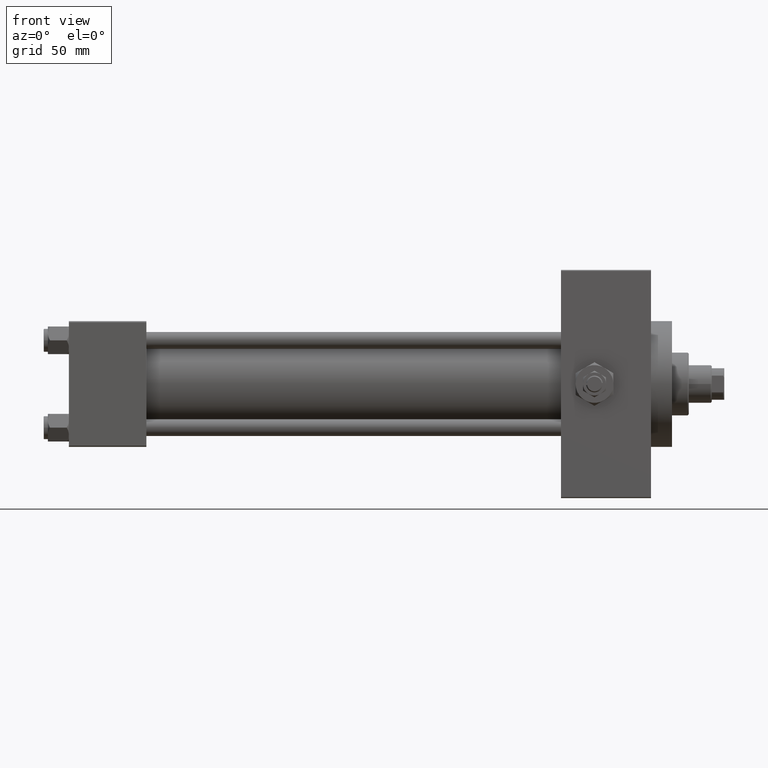
[diagram: clean part render]
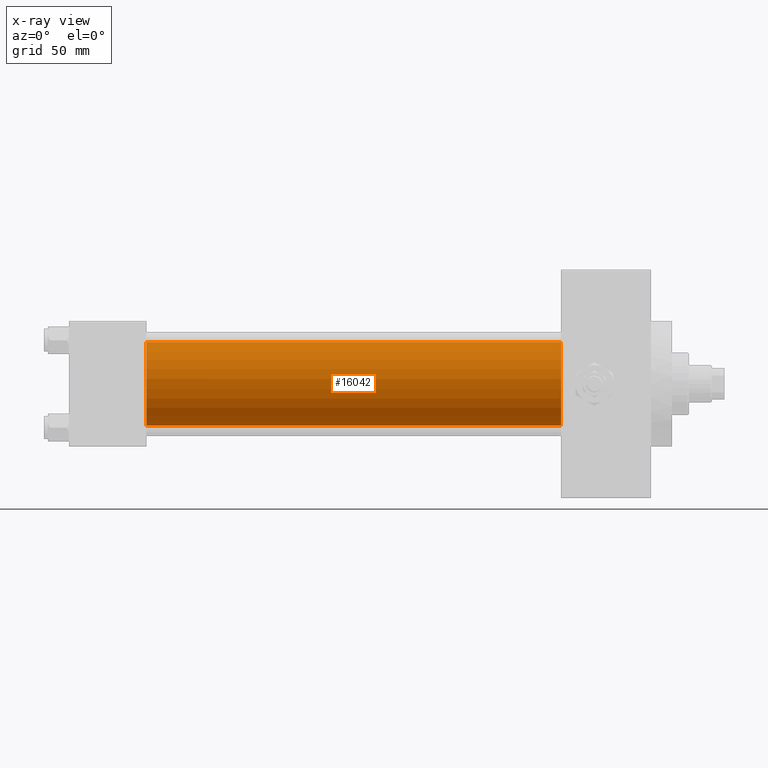
[diagram: x-ray — body ghosted, one internal face saturated and labeled with its STEP entity id]
A machine part, front view, then the same camera in x-ray: the body is ghosted and one INTERNAL B-rep face — a face not visible from any outside direction — is saturated and labeled: STEP entity #16042.
In plain terms, the highlighted cylindrical surface (partial cylindrical patch) has radius 20 mm, axis along (-1, -0, -0).
Its self-contained STEP definition (entity closure, byte-faithful):
#4202 = CIRCLE ( 'NONE', #26466, 20.00000000000000000 ) ;
#5707 = AXIS2_PLACEMENT_3D ( 'NONE', #41213, #49160, #42185 ) ;
#6140 = VERTEX_POINT ( 'NONE', #9868 ) ;
#7618 = DIRECTION ( 'NONE',  ( -1.000000000000000000, -0.000000000000000000, -0.000000000000000000 ) ) ;
#9868 = CARTESIAN_POINT ( 'NONE',  ( 37.00000000000000000, -1.527916156705042519E-16, -20.00000000000000000 ) ) ;
#10389 = EDGE_CURVE ( 'NONE', #34923, #35355, #38416, .T. ) ;
#12143 = VERTEX_POINT ( 'NONE', #15222 ) ;
#14311 = DIRECTION ( 'NONE',  ( 0.000000000000000000, 0.000000000000000000, 1.000000000000000000 ) ) ;
#14644 = DIRECTION ( 'NONE',  ( -1.000000000000000000, -0.000000000000000000, -0.000000000000000000 ) ) ;
#15222 = CARTESIAN_POINT ( 'NONE',  ( 235.0000000000000284, -1.527916156705042519E-16, -20.00000000000000000 ) ) ;
#15318 = CARTESIAN_POINT ( 'NONE',  ( 235.0000000000000284, -2.602085213965210642E-15, 20.00000000000000000 ) ) ;
#16042 = ADVANCED_FACE ( 'NONE', ( #49107 ), #25248, .F. ) ;
#18451 = ORIENTED_EDGE ( 'NONE', *, *, #43341, .T. ) ;
#21344 = LINE ( 'NONE', #33782, #34044 ) ;
#25248 = CYLINDRICAL_SURFACE ( 'NONE', #33165, 20.00000000000000000 ) ;
#26047 = DIRECTION ( 'NONE',  ( 1.000000000000000000, 0.000000000000000000, 0.000000000000000000 ) ) ;
#26466 = AXIS2_PLACEMENT_3D ( 'NONE', #37719, #26047, #41216 ) ;
#27177 = ORIENTED_EDGE ( 'NONE', *, *, #29595, .T. ) ;
#27629 = CARTESIAN_POINT ( 'NONE',  ( 37.00000000000000000, -2.602085213965210642E-15, 20.00000000000000000 ) ) ;
#29595 = EDGE_CURVE ( 'NONE', #12143, #6140, #21344, .T. ) ;
#29932 = VECTOR ( 'NONE', #7618, 1000.000000000000000 ) ;
#29977 = CARTESIAN_POINT ( 'NONE',  ( 235.0000000000000284, -2.602085213965210642E-15, 20.00000000000000000 ) ) ;
#31880 = CIRCLE ( 'NONE', #5707, 20.00000000000000000 ) ;
#32069 = ORIENTED_EDGE ( 'NONE', *, *, #40333, .F. ) ;
#32957 = CARTESIAN_POINT ( 'NONE',  ( 235.0000000000000284, -2.602085213965210642E-15, 0.000000000000000000 ) ) ;
#33165 = AXIS2_PLACEMENT_3D ( 'NONE', #32957, #48611, #14311 ) ;
#33782 = CARTESIAN_POINT ( 'NONE',  ( 235.0000000000000284, -1.527916156705042519E-16, -20.00000000000000000 ) ) ;
#34044 = VECTOR ( 'NONE', #14644, 1000.000000000000000 ) ;
#34923 = VERTEX_POINT ( 'NONE', #29977 ) ;
#35355 = VERTEX_POINT ( 'NONE', #27629 ) ;
#36940 = EDGE_LOOP ( 'NONE', ( #18451, #27177, #32069, #43444 ) ) ;
#37719 = CARTESIAN_POINT ( 'NONE',  ( 235.0000000000000284, -2.602085213965210642E-15, 0.000000000000000000 ) ) ;
#38416 = LINE ( 'NONE', #15318, #29932 ) ;
#40333 = EDGE_CURVE ( 'NONE', #35355, #6140, #31880, .T. ) ;
#41213 = CARTESIAN_POINT ( 'NONE',  ( 37.00000000000000000, -2.602085213965210642E-15, 0.000000000000000000 ) ) ;
#41216 = DIRECTION ( 'NONE',  ( 0.000000000000000000, 0.000000000000000000, -1.000000000000000000 ) ) ;
#42185 = DIRECTION ( 'NONE',  ( 0.000000000000000000, 0.000000000000000000, -1.000000000000000000 ) ) ;
#43341 = EDGE_CURVE ( 'NONE', #34923, #12143, #4202, .T. ) ;
#43444 = ORIENTED_EDGE ( 'NONE', *, *, #10389, .F. ) ;
#48611 = DIRECTION ( 'NONE',  ( -1.000000000000000000, -0.000000000000000000, -0.000000000000000000 ) ) ;
#49107 = FACE_OUTER_BOUND ( 'NONE', #36940, .T. ) ;
#49160 = DIRECTION ( 'NONE',  ( 1.000000000000000000, 0.000000000000000000, 0.000000000000000000 ) ) ;